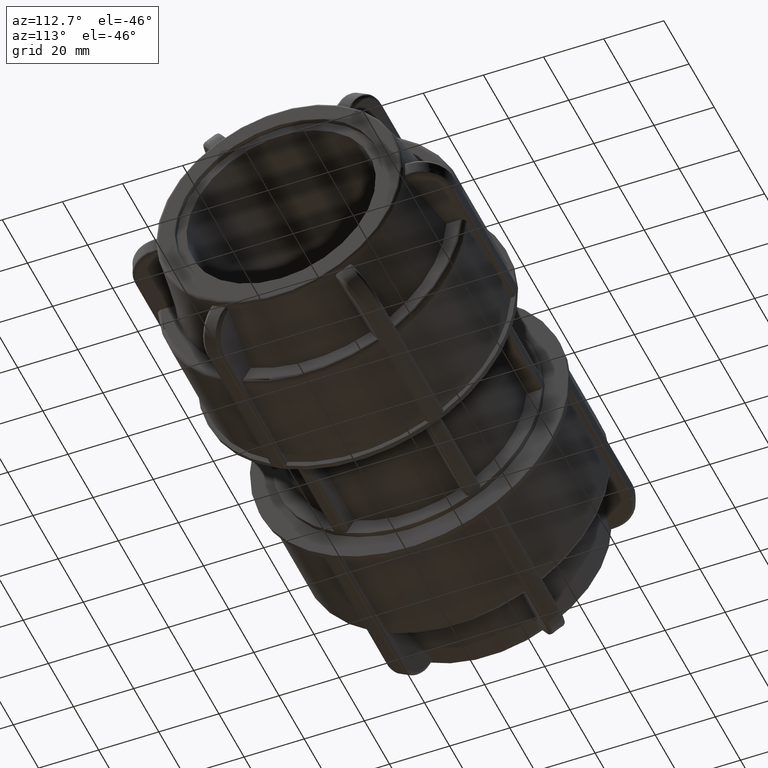
[diagram: clean part render]
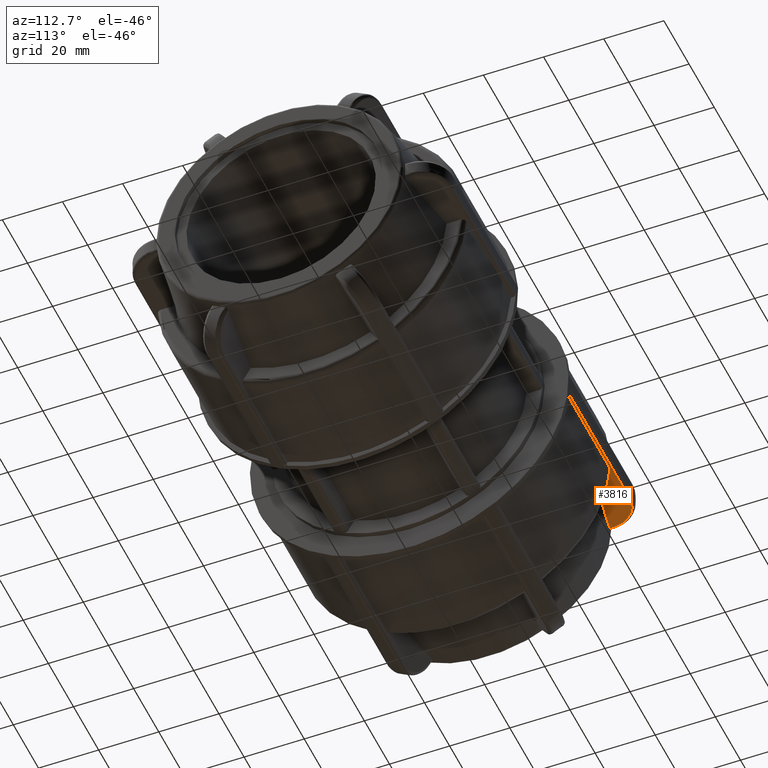
[diagram: same view with one face highlighted and labeled with its STEP entity id]
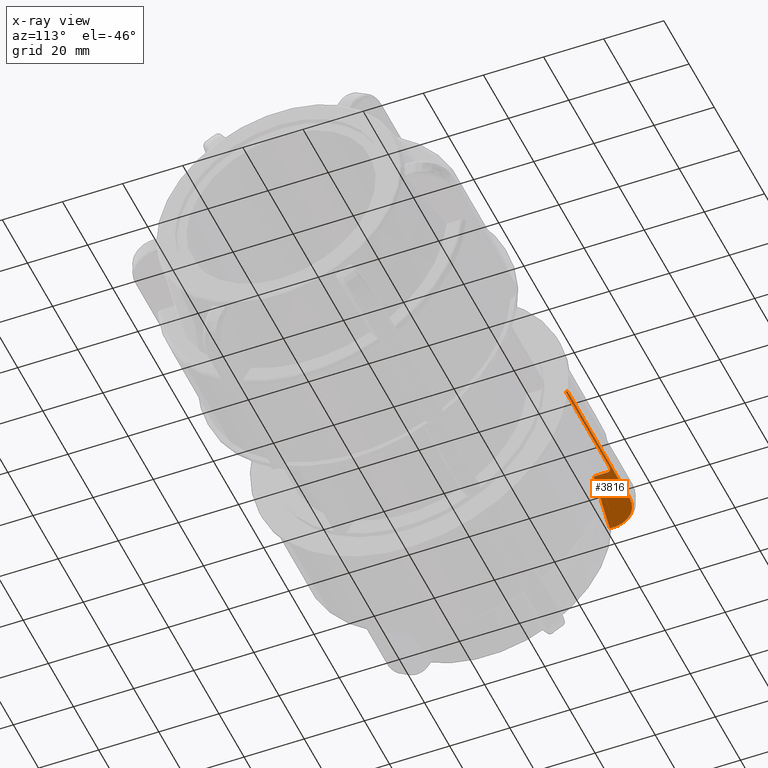
[diagram: x-ray of the same camera — body ghosted, the highlighted face saturated]
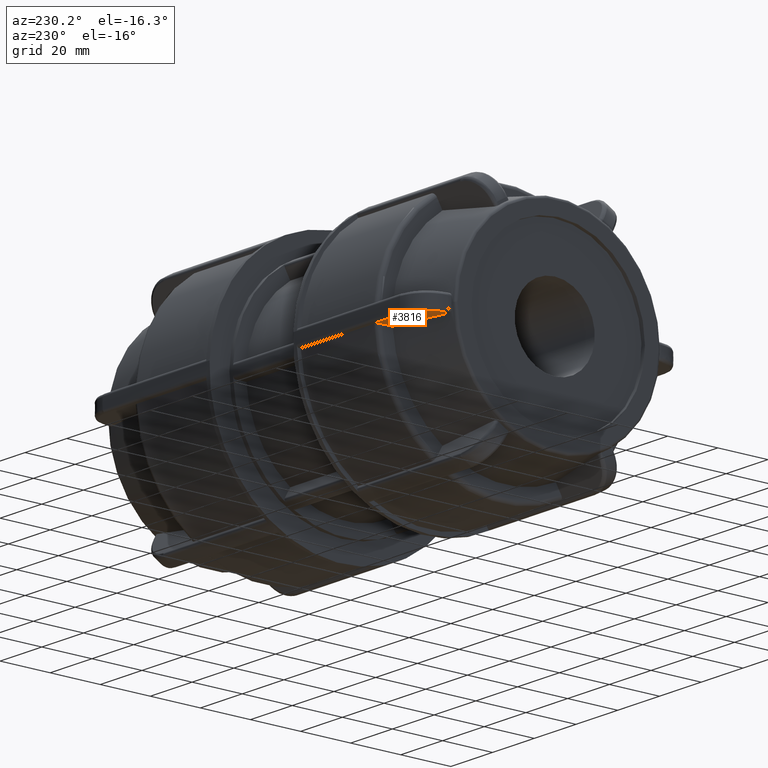
[diagram: same view with one face highlighted and labeled with its STEP entity id]
A machine part, auxiliary view. The second image highlights one B-rep face of the part: STEP entity #3816.
The next image is the same camera in x-ray: the body ghosted, the highlighted face saturated — about 0% of this face is hidden behind the body in this view.
A second angle (auxiliary view) of the same face is appended — the face is thin or edge-on in the first view.
In plain terms, the highlighted planar face has unit normal (-0, 0, 1).
Its self-contained STEP definition (entity closure, byte-faithful):
#53=(
BOUNDED_CURVE()
B_SPLINE_CURVE(2,(#6832,#6833,#6834),.UNSPECIFIED.,.F.,.F.)
B_SPLINE_CURVE_WITH_KNOTS((3,3),(0.112674172711161,2.37425823566291),
 .UNSPECIFIED.)
CURVE()
GEOMETRIC_REPRESENTATION_ITEM()
RATIONAL_B_SPLINE_CURVE((1.0001031353973,1.00108662908521,1.))
REPRESENTATION_ITEM('')
);
#108=B_SPLINE_CURVE_WITH_KNOTS('',3,(#6719,#6720,#6721,#6722,#6723,#6724,
#6725,#6726,#6727,#6728),.UNSPECIFIED.,.F.,.F.,(4,2,2,2,4),(-0.247562628182969,
-0.185600757791211,-0.123704867379069,-0.061822670858442,0.),
 .UNSPECIFIED.);
#110=B_SPLINE_CURVE_WITH_KNOTS('',3,(#6808,#6809,#6810,#6811,#6812,#6813),
 .UNSPECIFIED.,.F.,.F.,(4,1,1,4),(1.70850211009565E-15,0.428357679709412,
0.856715359418821,1.49925187898294),.UNSPECIFIED.);
#266=PLANE('',#4174);
#430=FACE_OUTER_BOUND('',#675,.T.);
#675=EDGE_LOOP('',(#3042,#3043,#3044,#3045,#3046,#3047,#3048,#3049));
#924=LINE('',#6693,#1152);
#926=LINE('',#6744,#1154);
#928=LINE('',#6757,#1156);
#929=LINE('',#6768,#1157);
#931=LINE('',#6830,#1159);
#1152=VECTOR('',#4912,4.38265552667059);
#1154=VECTOR('',#4964,35.07);
#1156=VECTOR('',#4984,0.584527829037809);
#1157=VECTOR('',#5001,49.52);
#1159=VECTOR('',#5007,1.03700516459941);
#1688=VERTEX_POINT('',#6690);
#1689=VERTEX_POINT('',#6692);
#1691=VERTEX_POINT('',#6718);
#1693=VERTEX_POINT('',#6743);
#1695=VERTEX_POINT('',#6756);
#1697=VERTEX_POINT('',#6766);
#1698=VERTEX_POINT('',#6799);
#1700=VERTEX_POINT('',#6815);
#2159=EDGE_CURVE('',#1688,#1689,#924,.T.);
#2168=EDGE_CURVE('',#1689,#1691,#108,.T.);
#2176=EDGE_CURVE('',#1691,#1693,#926,.T.);
#2181=EDGE_CURVE('',#1693,#1695,#928,.T.);
#2185=EDGE_CURVE('',#1695,#1697,#929,.T.);
#2188=EDGE_CURVE('',#1697,#1698,#110,.T.);
#2191=EDGE_CURVE('',#1698,#1700,#931,.T.);
#2192=EDGE_CURVE('',#1700,#1688,#53,.T.);
#3042=ORIENTED_EDGE('',*,*,#2191,.F.);
#3043=ORIENTED_EDGE('',*,*,#2188,.F.);
#3044=ORIENTED_EDGE('',*,*,#2185,.F.);
#3045=ORIENTED_EDGE('',*,*,#2181,.F.);
#3046=ORIENTED_EDGE('',*,*,#2176,.F.);
#3047=ORIENTED_EDGE('',*,*,#2168,.F.);
#3048=ORIENTED_EDGE('',*,*,#2159,.F.);
#3049=ORIENTED_EDGE('',*,*,#2192,.F.);
#3816=ADVANCED_FACE('',(#430),#266,.F.);
#4174=AXIS2_PLACEMENT_3D('',#6831,#5008,#5009);
#4912=DIRECTION('',(-3.06161699786838E-16,1.,-1.4408264185644E-16));
#4964=DIRECTION('',(1.,3.06161699786838E-16,0.));
#4984=DIRECTION('',(-3.06161699786838E-16,1.,-1.4408264185644E-16));
#5001=DIRECTION('',(-1.,-3.06161699786838E-16,-2.69129081299392E-33));
#5007=DIRECTION('',(3.06161699786838E-16,-1.,1.4408264185644E-16));
#5008=DIRECTION('center_axis',(-4.68038773535397E-32,1.4408264185644E-16,
1.));
#5009=DIRECTION('ref_axis',(-3.5527136788005E-16,1.,-1.33226762955019E-16));
#6690=CARTESIAN_POINT('',(-58.45,45.2575005971774,-3.15000000000001));
#6692=CARTESIAN_POINT('',(-58.45,49.640156123848,-3.15000000000001));
#6693=CARTESIAN_POINT('',(-58.45,29.8729999364669,-3.15));
#6718=CARTESIAN_POINT('',(-56.78,51.3134056558323,-3.15000000000001));
#6719=CARTESIAN_POINT('Ctrl Pts',(-58.45,49.640156123848,-3.15000000000001));
#6720=CARTESIAN_POINT('Ctrl Pts',(-58.45,49.8466956918205,-3.15000000000001));
#6721=CARTESIAN_POINT('Ctrl Pts',(-58.4017404315395,50.0897993490762,-3.15000000000001));
#6722=CARTESIAN_POINT('Ctrl Pts',(-58.243971304231,50.4713247397196,-3.15000000000001));
#6723=CARTESIAN_POINT('Ctrl Pts',(-58.1066184317648,50.6773145657399,-3.15000000000001));
#6724=CARTESIAN_POINT('Ctrl Pts',(-57.8151504632574,50.9693418267355,-3.15000000000001));
#6725=CARTESIAN_POINT('Ctrl Pts',(-57.6094674308046,51.1070552614486,-3.15000000000001));
#6726=CARTESIAN_POINT('Ctrl Pts',(-57.2285972934731,51.2650745527216,-3.15000000000001));
#6727=CARTESIAN_POINT('Ctrl Pts',(-56.9860755695282,51.3134056558323,-3.15000000000001));
#6728=CARTESIAN_POINT('Ctrl Pts',(-56.78,51.3134056558323,-3.15000000000001));
#6743=CARTESIAN_POINT('',(-21.71,51.3134056558323,-3.15000000000001));
#6744=CARTESIAN_POINT('',(-40.08,51.3134056558323,-3.15000000000001));
#6756=CARTESIAN_POINT('',(-21.71,51.8979334848701,-3.15000000000001));
#6757=CARTESIAN_POINT('',(-21.71,32.8945045030934,-3.15000000000001));
#6766=CARTESIAN_POINT('',(-71.23,51.8979334848701,-3.15000000000001));
#6768=CARTESIAN_POINT('',(-20.875,51.8979334848701,-3.15000000000001));
#6799=CARTESIAN_POINT('',(-80.77,42.3484580592965,-3.15000000000001));
#6808=CARTESIAN_POINT('Ctrl Pts',(-71.23,51.8979334848701,-3.15000000000001));
#6809=CARTESIAN_POINT('Ctrl Pts',(-72.6578589323648,51.8979334848701,-3.15000000000001));
#6810=CARTESIAN_POINT('Ctrl Pts',(-75.5086899471716,51.2439131197225,-3.15000000000001));
#6811=CARTESIAN_POINT('Ctrl Pts',(-79.5209979256663,48.0474893336049,-3.15000000000001));
#6812=CARTESIAN_POINT('Ctrl Pts',(-80.77,44.4902464578436,-3.15000000000001));
#6813=CARTESIAN_POINT('Ctrl Pts',(-80.77,42.3484580592965,-3.15000000000001));
#6815=CARTESIAN_POINT('',(-80.77,41.3114528946971,-3.15));
#6830=CARTESIAN_POINT('',(-80.77,24.0342567546401,-3.15));
#6831=CARTESIAN_POINT('Origin',(-20.04,14.3790090061868,-3.15));
#6832=CARTESIAN_POINT('Ctrl Pts',(-80.7700000000003,41.3114528946971,-3.15000000000001));
#6833=CARTESIAN_POINT('Ctrl Pts',(-70.1187027296224,43.1950158037449,-3.15000000000001));
#6834=CARTESIAN_POINT('Ctrl Pts',(-58.45,45.2575005971774,-3.15000000000001));